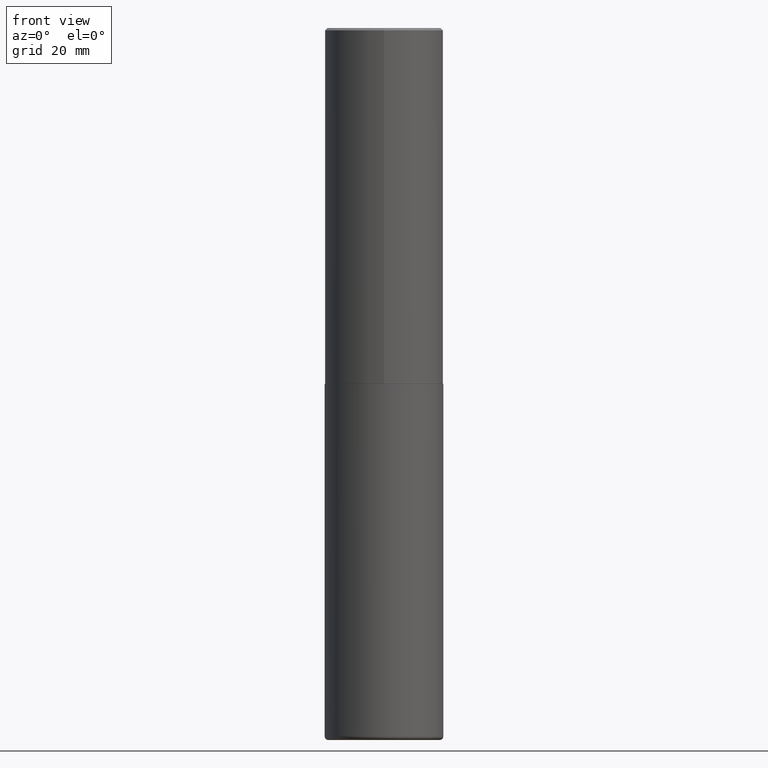
[diagram: clean part render]
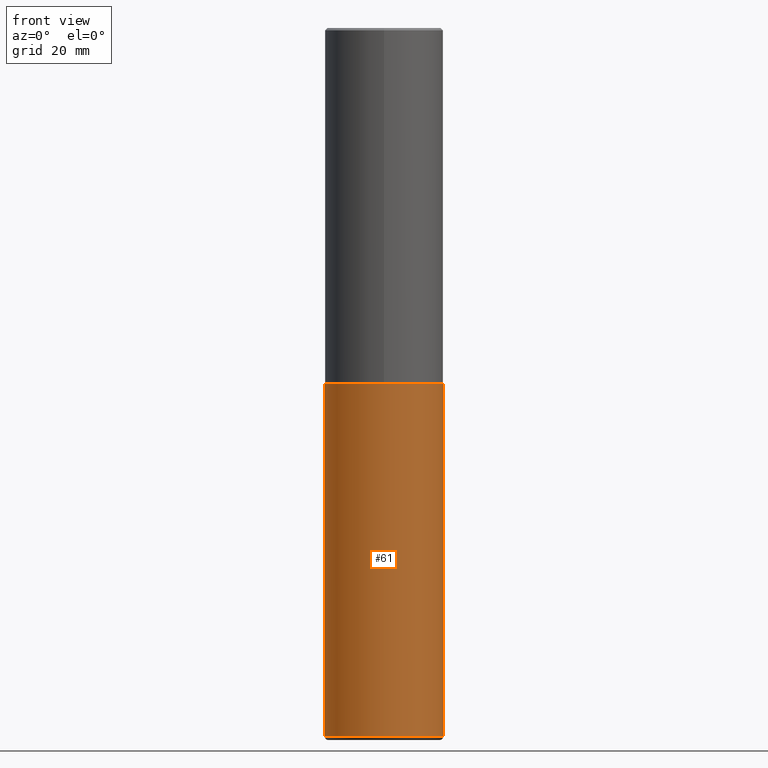
[diagram: same view with one face highlighted and labeled with its STEP entity id]
A machine part, front view. The second image highlights one B-rep face of the part: STEP entity #61.
In plain terms, the highlighted cylindrical surface (partial cylindrical patch) has radius 12.7 mm, axis along (-0, 0, 1).
Its self-contained STEP definition (entity closure, byte-faithful):
#1 = EDGE_CURVE ( 'NONE', #386, #226, #171, .T. ) ;
#7 = VERTEX_POINT ( 'NONE', #401 ) ;
#9 = CYLINDRICAL_SURFACE ( 'NONE', #248, 0.5000000000000000000 ) ;
#19 = DIRECTION ( 'NONE',  ( 1.000000000000000000, -6.982962677686263555E-15, 0.000000000000000000 ) ) ;
#22 = AXIS2_PLACEMENT_3D ( 'NONE', #361, #363, #237 ) ;
#26 = EDGE_CURVE ( 'NONE', #81, #226, #414, .T. ) ;
#31 = DIRECTION ( 'NONE',  ( -2.445468806185136877E-29, 3.491481338843145188E-15, 1.000000000000000000 ) ) ;
#33 = CARTESIAN_POINT ( 'NONE',  ( -0.5000000000000000000, 3.552713678800500929E-15, -2.459467545127452891E-29 ) ) ;
#42 = DIRECTION ( 'NONE',  ( -2.445468806185136877E-29, 3.491481338843145188E-15, 1.000000000000000000 ) ) ;
#44 = CARTESIAN_POINT ( 'NONE',  ( 0.000000000000000000, 0.000000000000000000, 0.000000000000000000 ) ) ;
#58 = DIRECTION ( 'NONE',  ( -2.445468806185136597E-29, 3.491481338843145583E-15, 1.000000000000000000 ) ) ;
#61 = ADVANCED_FACE ( 'NONE', ( #301 ), #9, .T. ) ;
#73 = EDGE_LOOP ( 'NONE', ( #138, #262, #384, #367 ) ) ;
#81 = VERTEX_POINT ( 'NONE', #339 ) ;
#96 = VECTOR ( 'NONE', #31, 39.37007874015748143 ) ;
#101 = CARTESIAN_POINT ( 'NONE',  ( 0.5000000000000003331, -2.433562493173670954E-14, -5.969999999999999751 ) ) ;
#113 = DIRECTION ( 'NONE',  ( 1.000000000000000000, -6.982962677686266711E-15, 4.876176775795935793E-29 ) ) ;
#133 = EDGE_CURVE ( 'NONE', #7, #386, #343, .T. ) ;
#138 = ORIENTED_EDGE ( 'NONE', *, *, #403, .F. ) ;
#146 = CARTESIAN_POINT ( 'NONE',  ( 0.5000000000000000000, -3.491481338843133355E-15, 2.438088387897967896E-29 ) ) ;
#162 = AXIS2_PLACEMENT_3D ( 'NONE', #280, #58, #19 ) ;
#171 = LINE ( 'NONE', #146, #329 ) ;
#206 = DIRECTION ( 'NONE',  ( -2.445468806185136597E-29, 3.491481338843145583E-15, 1.000000000000000000 ) ) ;
#226 = VERTEX_POINT ( 'NONE', #281 ) ;
#237 = DIRECTION ( 'NONE',  ( 1.000000000000000000, -6.982962677686266711E-15, 0.000000000000000000 ) ) ;
#248 = AXIS2_PLACEMENT_3D ( 'NONE', #44, #206, #113 ) ;
#262 = ORIENTED_EDGE ( 'NONE', *, *, #133, .T. ) ;
#280 = CARTESIAN_POINT ( 'NONE',  ( 1.459944877292526494E-28, -2.084414359289357934E-14, -5.969999999999999751 ) ) ;
#281 = CARTESIAN_POINT ( 'NONE',  ( 0.5000000000000000000, -1.396592535537257129E-14, -3.000000000000000444 ) ) ;
#293 = LINE ( 'NONE', #33, #96 ) ;
#301 = FACE_OUTER_BOUND ( 'NONE', #73, .T. ) ;
#329 = VECTOR ( 'NONE', #42, 39.37007874015748143 ) ;
#339 = CARTESIAN_POINT ( 'NONE',  ( -0.5000000000000000000, -1.210658012591100613E-14, -3.000000000000000444 ) ) ;
#343 = CIRCLE ( 'NONE', #162, 0.4999999999999999445 ) ;
#361 = CARTESIAN_POINT ( 'NONE',  ( 7.336406418555409790E-29, -1.047444401652943635E-14, -3.000000000000000444 ) ) ;
#363 = DIRECTION ( 'NONE',  ( -2.445468806185136597E-29, 3.491481338843145583E-15, 1.000000000000000000 ) ) ;
#367 = ORIENTED_EDGE ( 'NONE', *, *, #26, .F. ) ;
#384 = ORIENTED_EDGE ( 'NONE', *, *, #1, .T. ) ;
#386 = VERTEX_POINT ( 'NONE', #101 ) ;
#401 = CARTESIAN_POINT ( 'NONE',  ( -0.5000000000000003331, -1.729142991409307210E-14, -5.969999999999999751 ) ) ;
#403 = EDGE_CURVE ( 'NONE', #7, #81, #293, .T. ) ;
#414 = CIRCLE ( 'NONE', #22, 0.5000000000000000000 ) ;